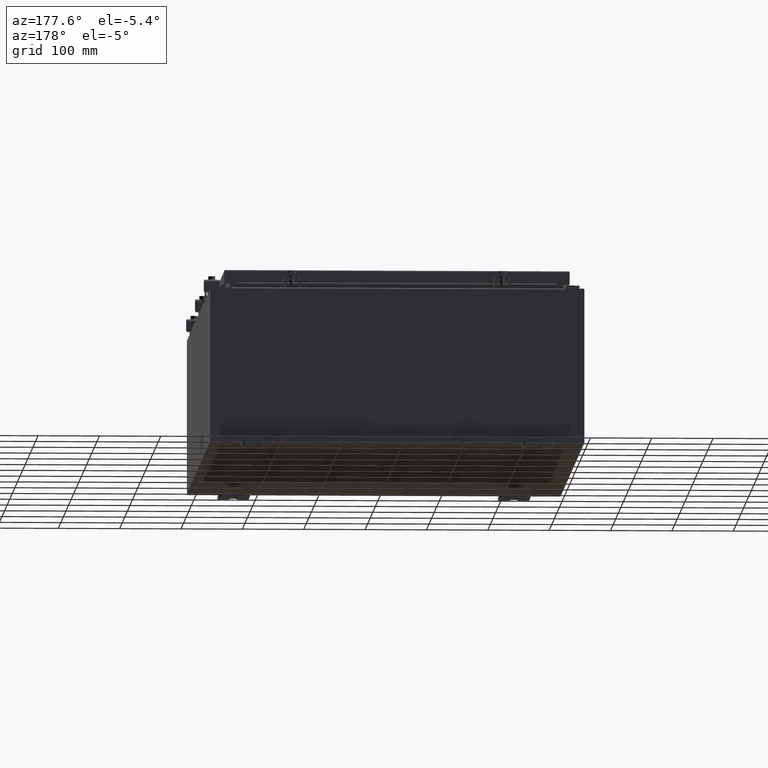
[diagram: clean part render]
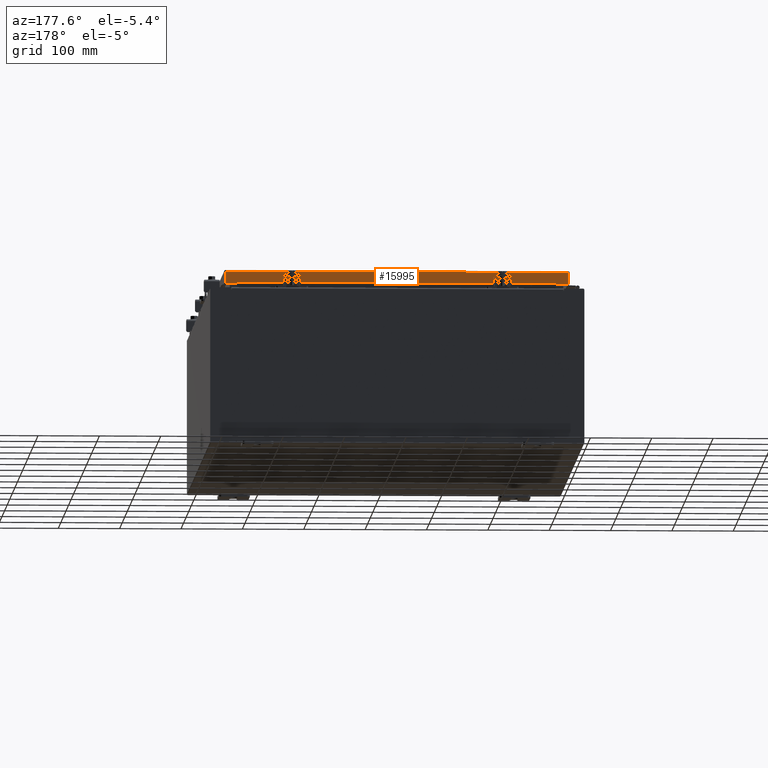
[diagram: same view with one face highlighted and labeled with its STEP entity id]
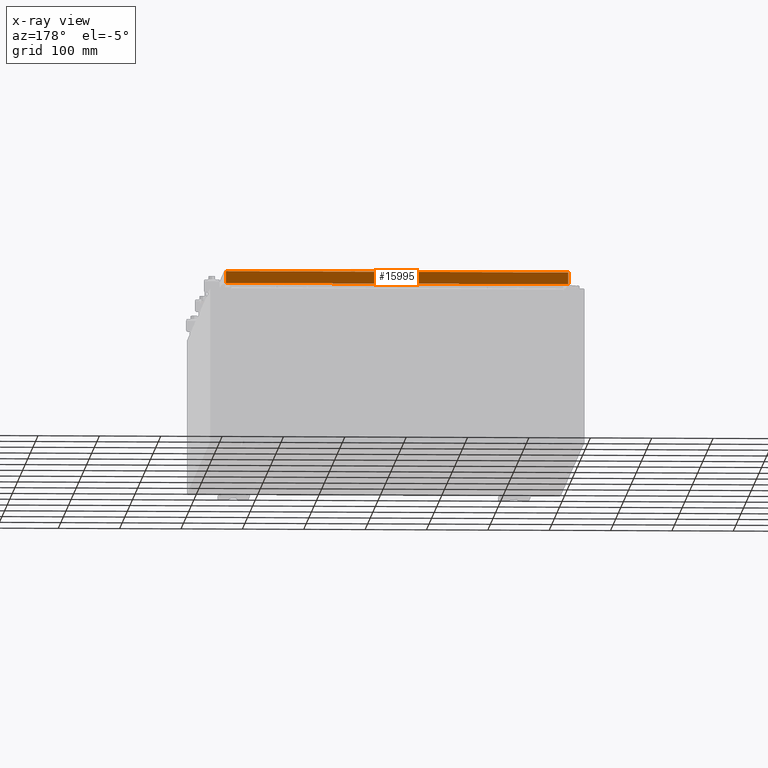
[diagram: x-ray of the same camera — body ghosted, the highlighted face saturated]
A machine part, auxiliary view. The second image highlights one B-rep face of the part: STEP entity #15995.
The next image is the same camera in x-ray: the body ghosted, the highlighted face saturated — about 0% of this face is hidden behind the body in this view.
In plain terms, the highlighted planar face has unit normal (0, -1, -0).
Its self-contained STEP definition (entity closure, byte-faithful):
#372 = CARTESIAN_POINT ( 'NONE',  ( 10.98915786437626500, 17.09400000000000800, -0.08770000000000007000 ) ) ;
#609 = DIRECTION ( 'NONE',  ( 1.000000000000000000, -0.0000000000000000000, -0.0000000000000000000 ) ) ;
#3556 = LINE ( 'NONE', #37974, #11193 ) ;
#4397 = EDGE_CURVE ( 'NONE', #41202, #9403, #36450, .T. ) ;
#4538 = VERTEX_POINT ( 'NONE', #33806 ) ;
#6375 = PLANE ( 'NONE',  #29200 ) ;
#6499 = VERTEX_POINT ( 'NONE', #22174 ) ;
#7291 = CARTESIAN_POINT ( 'NONE',  ( -10.98915786437627200, 17.09400000000000800, -0.07469999999999978000 ) ) ;
#7433 = DIRECTION ( 'NONE',  ( -0.0000000000000000000, 2.818880942772350300E-015, -1.000000000000000000 ) ) ;
#8235 = LINE ( 'NONE', #32862, #14840 ) ;
#8673 = EDGE_LOOP ( 'NONE', ( #24598, #17438, #15870, #14082, #32493, #25046 ) ) ;
#8948 = EDGE_CURVE ( 'NONE', #18898, #4538, #33036, .T. ) ;
#9403 = VERTEX_POINT ( 'NONE', #19578 ) ;
#9480 = CARTESIAN_POINT ( 'NONE',  ( -5.941356432273426800E-030, 17.09400000000000800, 4.844676449176215600E-014 ) ) ;
#9975 = DIRECTION ( 'NONE',  ( 1.000000000000000000, -4.379057701015054300E-047, 1.233005954894504400E-016 ) ) ;
#10526 = VECTOR ( 'NONE', #36724, 39.37007874015748100 ) ;
#11193 = VECTOR ( 'NONE', #31417, 39.37007874015748100 ) ;
#12874 = DIRECTION ( 'NONE',  ( 3.475696988576941300E-031, -1.000000000000000000, -2.818880942772350300E-015 ) ) ;
#13811 = LINE ( 'NONE', #26666, #31067 ) ;
#14082 = ORIENTED_EDGE ( 'NONE', *, *, #21967, .F. ) ;
#14769 = VECTOR ( 'NONE', #7433, 39.37007874015748100 ) ;
#14840 = VECTOR ( 'NONE', #19818, 39.37007874015748100 ) ;
#15870 = ORIENTED_EDGE ( 'NONE', *, *, #21912, .F. ) ;
#15995 = ADVANCED_FACE ( 'NONE', ( #30265 ), #6375, .F. ) ;
#17438 = ORIENTED_EDGE ( 'NONE', *, *, #4397, .T. ) ;
#18773 = CARTESIAN_POINT ( 'NONE',  ( 10.23915786437626500, 17.09400000000000800, -0.8500000000000033100 ) ) ;
#18898 = VERTEX_POINT ( 'NONE', #28253 ) ;
#19578 = CARTESIAN_POINT ( 'NONE',  ( 10.98915786437626500, 17.09400000000000800, -0.8499999999999996400 ) ) ;
#19818 = DIRECTION ( 'NONE',  ( 1.000000000000000000, -4.379057701015054300E-047, 1.233005954894504400E-016 ) ) ;
#21912 = EDGE_CURVE ( 'NONE', #33596, #9403, #8235, .T. ) ;
#21967 = EDGE_CURVE ( 'NONE', #6499, #33596, #13811, .T. ) ;
#22174 = CARTESIAN_POINT ( 'NONE',  ( -10.23915786437626900, 17.09400000000000800, -0.8500000000000033100 ) ) ;
#24598 = ORIENTED_EDGE ( 'NONE', *, *, #33757, .F. ) ;
#25046 = ORIENTED_EDGE ( 'NONE', *, *, #8948, .F. ) ;
#25087 = LINE ( 'NONE', #36111, #33649 ) ;
#26666 = CARTESIAN_POINT ( 'NONE',  ( -10.23915786437626900, 17.09400000000000800, -0.8500000000000033100 ) ) ;
#28253 = CARTESIAN_POINT ( 'NONE',  ( -10.98915786437626900, 17.09400000000000800, -0.08770000000000007000 ) ) ;
#29200 = AXIS2_PLACEMENT_3D ( 'NONE', #9480, #12874, #35595 ) ;
#30265 = FACE_OUTER_BOUND ( 'NONE', #8673, .T. ) ;
#31067 = VECTOR ( 'NONE', #609, 39.37007874015748100 ) ;
#31417 = DIRECTION ( 'NONE',  ( -1.000000000000000000, -3.475696988576942200E-031, -9.473942235605600700E-046 ) ) ;
#32493 = ORIENTED_EDGE ( 'NONE', *, *, #35867, .F. ) ;
#32862 = CARTESIAN_POINT ( 'NONE',  ( -11.07800000000000300, 17.09400000000000800, -0.8500000000000024200 ) ) ;
#33036 = LINE ( 'NONE', #7291, #14769 ) ;
#33596 = VERTEX_POINT ( 'NONE', #18773 ) ;
#33649 = VECTOR ( 'NONE', #9975, 39.37007874015748100 ) ;
#33757 = EDGE_CURVE ( 'NONE', #41202, #18898, #3556, .T. ) ;
#33806 = CARTESIAN_POINT ( 'NONE',  ( -10.98915786437627200, 17.09400000000000800, -0.8500000000000024200 ) ) ;
#35595 = DIRECTION ( 'NONE',  ( 0.0000000000000000000, 2.818880942772350300E-015, -1.000000000000000000 ) ) ;
#35867 = EDGE_CURVE ( 'NONE', #4538, #6499, #25087, .T. ) ;
#36111 = CARTESIAN_POINT ( 'NONE',  ( -11.07800000000000300, 17.09400000000000800, -0.8500000000000024200 ) ) ;
#36450 = LINE ( 'NONE', #36781, #10526 ) ;
#36724 = DIRECTION ( 'NONE',  ( 0.0000000000000000000, 2.818880942772350300E-015, -1.000000000000000000 ) ) ;
#36781 = CARTESIAN_POINT ( 'NONE',  ( 10.98915786437626500, 17.09400000000000800, 4.844676449176215600E-014 ) ) ;
#37974 = CARTESIAN_POINT ( 'NONE',  ( -11.07800000000000300, 17.09400000000000800, -0.08770000000000007000 ) ) ;
#41202 = VERTEX_POINT ( 'NONE', #372 ) ;